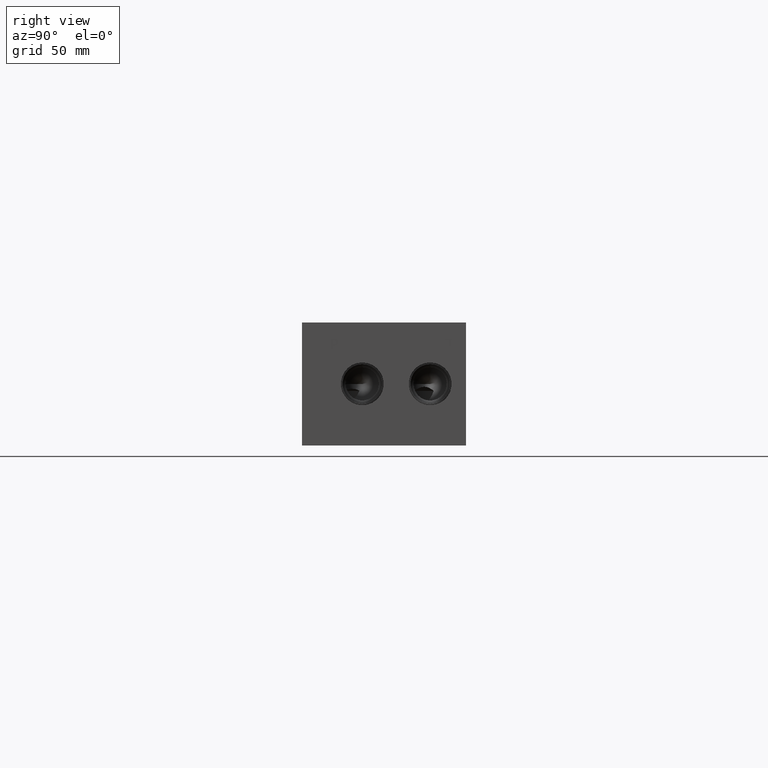
[diagram: clean part render]
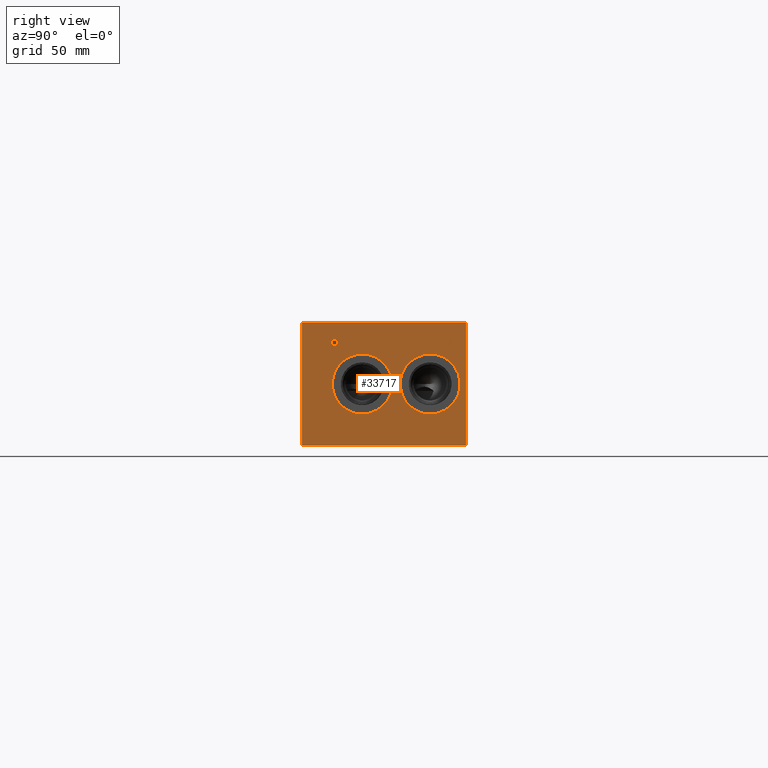
[diagram: same view with one face highlighted and labeled with its STEP entity id]
A machine part, right view. The second image highlights one B-rep face of the part: STEP entity #33717.
In plain terms, the highlighted planar face has unit normal (1, 0, 0).
Its self-contained STEP definition (entity closure, byte-faithful):
#448=CIRCLE('',#35371,18.5547);
#449=CIRCLE('',#35372,18.5547);
#450=CIRCLE('',#35373,18.5547);
#451=CIRCLE('',#35374,18.5547);
#1404=FACE_BOUND('',#5839,.T.);
#1405=FACE_BOUND('',#5840,.T.);
#1406=FACE_BOUND('',#5841,.T.);
#1407=FACE_BOUND('',#5842,.T.);
#2213=B_SPLINE_CURVE_WITH_KNOTS('',2,(#51628,#51629,#51630,#51631),
 .UNSPECIFIED.,.F.,.F.,(3,1,3),(0.,1.,2.),.UNSPECIFIED.);
#2215=B_SPLINE_CURVE_WITH_KNOTS('',2,(#51649,#51650,#51651,#51652),
 .UNSPECIFIED.,.F.,.F.,(3,1,3),(0.,1.,2.),.UNSPECIFIED.);
#2217=B_SPLINE_CURVE_WITH_KNOTS('',2,(#51698,#51699,#51700,#51701),
 .UNSPECIFIED.,.F.,.F.,(3,1,3),(0.,1.,2.),.UNSPECIFIED.);
#2219=B_SPLINE_CURVE_WITH_KNOTS('',2,(#51716,#51717,#51718,#51719),
 .UNSPECIFIED.,.F.,.F.,(3,1,3),(0.,1.,2.),.UNSPECIFIED.);
#3921=FACE_OUTER_BOUND('',#5838,.T.);
#5838=EDGE_LOOP('',(#24961,#24962,#24963,#24964));
#5839=EDGE_LOOP('',(#24965,#24966));
#5840=EDGE_LOOP('',(#24967,#24968));
#5841=EDGE_LOOP('',(#24969,#24970,#24971,#24972,#24973,#24974,#24975,#24976));
#5842=EDGE_LOOP('',(#24977,#24978,#24979,#24980,#24981,#24982,#24983,#24984,
#24985));
#7507=LINE('',#46495,#10371);
#8034=LINE('',#48664,#10898);
#8590=LINE('',#51661,#11454);
#8593=LINE('',#51667,#11457);
#8596=LINE('',#51673,#11460);
#8599=LINE('',#51679,#11463);
#8602=LINE('',#51685,#11466);
#8606=LINE('',#51727,#11470);
#8607=LINE('',#51728,#11471);
#8608=LINE('',#51739,#11472);
#8609=LINE('',#51741,#11473);
#8610=LINE('',#51743,#11474);
#8611=LINE('',#51745,#11475);
#8612=LINE('',#51747,#11476);
#8613=LINE('',#51749,#11477);
#8614=LINE('',#51751,#11478);
#8615=LINE('',#51752,#11479);
#10371=VECTOR('',#37494,10.);
#10898=VECTOR('',#38377,10.);
#11454=VECTOR('',#39385,10.);
#11457=VECTOR('',#39390,10.);
#11460=VECTOR('',#39395,10.);
#11463=VECTOR('',#39400,10.);
#11466=VECTOR('',#39405,10.);
#11470=VECTOR('',#39413,10.);
#11471=VECTOR('',#39414,10.);
#11472=VECTOR('',#39423,10.);
#11473=VECTOR('',#39424,10.);
#11474=VECTOR('',#39425,10.);
#11475=VECTOR('',#39426,10.);
#11476=VECTOR('',#39427,10.);
#11477=VECTOR('',#39428,10.);
#11478=VECTOR('',#39429,10.);
#11479=VECTOR('',#39430,10.);
#13267=VERTEX_POINT('',#46492);
#13268=VERTEX_POINT('',#46494);
#13844=VERTEX_POINT('',#48662);
#14389=VERTEX_POINT('',#51626);
#14390=VERTEX_POINT('',#51627);
#14393=VERTEX_POINT('',#51648);
#14395=VERTEX_POINT('',#51660);
#14397=VERTEX_POINT('',#51666);
#14399=VERTEX_POINT('',#51672);
#14401=VERTEX_POINT('',#51678);
#14403=VERTEX_POINT('',#51684);
#14405=VERTEX_POINT('',#51697);
#14407=VERTEX_POINT('',#51726);
#14408=VERTEX_POINT('',#51729);
#14409=VERTEX_POINT('',#51730);
#14410=VERTEX_POINT('',#51733);
#14411=VERTEX_POINT('',#51734);
#14412=VERTEX_POINT('',#51737);
#14413=VERTEX_POINT('',#51738);
#14414=VERTEX_POINT('',#51740);
#14415=VERTEX_POINT('',#51742);
#14416=VERTEX_POINT('',#51744);
#14417=VERTEX_POINT('',#51746);
#14418=VERTEX_POINT('',#51748);
#14419=VERTEX_POINT('',#51750);
#16823=EDGE_CURVE('',#13267,#13268,#7507,.T.);
#17556=EDGE_CURVE('',#13267,#13844,#8034,.T.);
#18353=EDGE_CURVE('',#14389,#14390,#2213,.T.);
#18357=EDGE_CURVE('',#14393,#14389,#2215,.T.);
#18360=EDGE_CURVE('',#14395,#14393,#8590,.T.);
#18363=EDGE_CURVE('',#14397,#14395,#8593,.T.);
#18366=EDGE_CURVE('',#14399,#14397,#8596,.T.);
#18369=EDGE_CURVE('',#14401,#14399,#8599,.T.);
#18372=EDGE_CURVE('',#14403,#14401,#8602,.T.);
#18375=EDGE_CURVE('',#14405,#14403,#2217,.T.);
#18378=EDGE_CURVE('',#14390,#14405,#2219,.T.);
#18380=EDGE_CURVE('',#13844,#14407,#8606,.T.);
#18381=EDGE_CURVE('',#13268,#14407,#8607,.T.);
#18382=EDGE_CURVE('',#14408,#14409,#448,.T.);
#18383=EDGE_CURVE('',#14409,#14408,#449,.T.);
#18384=EDGE_CURVE('',#14410,#14411,#450,.T.);
#18385=EDGE_CURVE('',#14411,#14410,#451,.T.);
#18386=EDGE_CURVE('',#14412,#14413,#8608,.T.);
#18387=EDGE_CURVE('',#14413,#14414,#8609,.T.);
#18388=EDGE_CURVE('',#14414,#14415,#8610,.T.);
#18389=EDGE_CURVE('',#14415,#14416,#8611,.T.);
#18390=EDGE_CURVE('',#14416,#14417,#8612,.T.);
#18391=EDGE_CURVE('',#14417,#14418,#8613,.T.);
#18392=EDGE_CURVE('',#14418,#14419,#8614,.T.);
#18393=EDGE_CURVE('',#14419,#14412,#8615,.T.);
#24961=ORIENTED_EDGE('',*,*,#17556,.T.);
#24962=ORIENTED_EDGE('',*,*,#18380,.T.);
#24963=ORIENTED_EDGE('',*,*,#18381,.F.);
#24964=ORIENTED_EDGE('',*,*,#16823,.F.);
#24965=ORIENTED_EDGE('',*,*,#18382,.T.);
#24966=ORIENTED_EDGE('',*,*,#18383,.T.);
#24967=ORIENTED_EDGE('',*,*,#18384,.T.);
#24968=ORIENTED_EDGE('',*,*,#18385,.T.);
#24969=ORIENTED_EDGE('',*,*,#18386,.T.);
#24970=ORIENTED_EDGE('',*,*,#18387,.T.);
#24971=ORIENTED_EDGE('',*,*,#18388,.T.);
#24972=ORIENTED_EDGE('',*,*,#18389,.T.);
#24973=ORIENTED_EDGE('',*,*,#18390,.T.);
#24974=ORIENTED_EDGE('',*,*,#18391,.T.);
#24975=ORIENTED_EDGE('',*,*,#18392,.T.);
#24976=ORIENTED_EDGE('',*,*,#18393,.T.);
#24977=ORIENTED_EDGE('',*,*,#18353,.T.);
#24978=ORIENTED_EDGE('',*,*,#18378,.T.);
#24979=ORIENTED_EDGE('',*,*,#18375,.T.);
#24980=ORIENTED_EDGE('',*,*,#18372,.T.);
#24981=ORIENTED_EDGE('',*,*,#18369,.T.);
#24982=ORIENTED_EDGE('',*,*,#18366,.T.);
#24983=ORIENTED_EDGE('',*,*,#18363,.T.);
#24984=ORIENTED_EDGE('',*,*,#18360,.T.);
#24985=ORIENTED_EDGE('',*,*,#18357,.T.);
#31358=PLANE('',#35370);
#33717=ADVANCED_FACE('',(#3921,#1404,#1405,#1406,#1407),#31358,.T.);
#35370=AXIS2_PLACEMENT_3D('',#51725,#39411,#39412);
#35371=AXIS2_PLACEMENT_3D('',#51731,#39415,#39416);
#35372=AXIS2_PLACEMENT_3D('',#51732,#39417,#39418);
#35373=AXIS2_PLACEMENT_3D('',#51735,#39419,#39420);
#35374=AXIS2_PLACEMENT_3D('',#51736,#39421,#39422);
#37494=DIRECTION('',(0.,0.,1.));
#38377=DIRECTION('',(0.,1.,0.));
#39385=DIRECTION('',(0.,1.,0.));
#39390=DIRECTION('',(0.,0.,1.));
#39395=DIRECTION('',(0.,-1.,0.));
#39400=DIRECTION('',(0.,0.,-1.));
#39405=DIRECTION('',(0.,-1.,0.));
#39411=DIRECTION('center_axis',(1.,0.,0.));
#39412=DIRECTION('ref_axis',(0.,1.,0.));
#39413=DIRECTION('',(0.,0.,1.));
#39414=DIRECTION('',(0.,1.,0.));
#39415=DIRECTION('center_axis',(-1.,0.,0.));
#39416=DIRECTION('ref_axis',(0.,0.,-1.));
#39417=DIRECTION('center_axis',(-1.,0.,0.));
#39418=DIRECTION('ref_axis',(0.,0.,-1.));
#39419=DIRECTION('center_axis',(-1.,0.,0.));
#39420=DIRECTION('ref_axis',(0.,0.,-1.));
#39421=DIRECTION('center_axis',(-1.,0.,0.));
#39422=DIRECTION('ref_axis',(0.,0.,-1.));
#39423=DIRECTION('',(0.,-1.,0.));
#39424=DIRECTION('',(0.,0.,1.));
#39425=DIRECTION('',(0.,-1.,0.));
#39426=DIRECTION('',(0.,0.,1.));
#39427=DIRECTION('',(0.,1.,0.));
#39428=DIRECTION('',(0.,0.,-1.));
#39429=DIRECTION('',(0.,-1.,0.));
#39430=DIRECTION('',(0.,0.,-1.));
#46492=CARTESIAN_POINT('',(434.975,0.,0.));
#46494=CARTESIAN_POINT('',(434.975,0.,76.2));
#46495=CARTESIAN_POINT('',(434.975,0.,0.));
#48662=CARTESIAN_POINT('',(434.975,101.6,0.));
#48664=CARTESIAN_POINT('',(434.975,0.,0.));
#51626=CARTESIAN_POINT('',(434.975,21.3630672023594,65.4850181439707));
#51627=CARTESIAN_POINT('',(434.975,22.119509654532,63.9669873726039));
#51628=CARTESIAN_POINT('Ctrl Pts',(434.975,21.3630672023594,65.4850181439707));
#51629=CARTESIAN_POINT('Ctrl Pts',(434.975,21.7181320268486,65.2431623939564));
#51630=CARTESIAN_POINT('Ctrl Pts',(434.975,22.119509654532,64.4970116758269));
#51631=CARTESIAN_POINT('Ctrl Pts',(434.975,22.119509654532,63.9669873726039));
#51648=CARTESIAN_POINT('',(434.975,19.7009521543883,65.8812499046326));
#51649=CARTESIAN_POINT('Ctrl Pts',(434.975,19.7009521543883,65.8812499046326));
#51650=CARTESIAN_POINT('Ctrl Pts',(434.975,20.2669975267624,65.8812499046326));
#51651=CARTESIAN_POINT('Ctrl Pts',(434.975,21.059461048086,65.6959986918556));
#51652=CARTESIAN_POINT('Ctrl Pts',(434.975,21.3630672023594,65.4850181439707));
#51660=CARTESIAN_POINT('',(434.975,18.1057333776978,65.8812499046326));
#51661=CARTESIAN_POINT('',(434.975,9.05286668884889,65.8812499046326));
#51666=CARTESIAN_POINT('',(434.975,18.1057333776978,59.53125));
#51667=CARTESIAN_POINT('',(434.975,18.1057333776978,29.765625));
#51672=CARTESIAN_POINT('',(434.975,18.9496555692373,59.53125));
#51673=CARTESIAN_POINT('',(434.975,9.47482778461864,59.53125));
#51678=CARTESIAN_POINT('',(434.975,18.9496555692373,61.8983488299279));
#51679=CARTESIAN_POINT('',(434.975,18.9496555692373,30.9491744149639));
#51684=CARTESIAN_POINT('',(434.975,19.6649310852372,61.8983488299279));
#51685=CARTESIAN_POINT('',(434.975,9.83246554261861,61.8983488299279));
#51697=CARTESIAN_POINT('',(434.975,21.5637560162011,62.5570198086904));
#51698=CARTESIAN_POINT('Ctrl Pts',(434.975,21.5637560162011,62.5570198086904));
#51699=CARTESIAN_POINT('Ctrl Pts',(434.975,21.2344205268198,62.2328301863307));
#51700=CARTESIAN_POINT('Ctrl Pts',(434.975,20.3441855320861,61.8983488299279));
#51701=CARTESIAN_POINT('Ctrl Pts',(434.975,19.6649310852372,61.8983488299279));
#51716=CARTESIAN_POINT('Ctrl Pts',(434.975,22.119509654532,63.9669873726039));
#51717=CARTESIAN_POINT('Ctrl Pts',(434.975,22.119509654532,63.5553180108774));
#51718=CARTESIAN_POINT('Ctrl Pts',(434.975,21.8261952343018,62.8143131597695));
#51719=CARTESIAN_POINT('Ctrl Pts',(434.975,21.5637560162011,62.5570198086904));
#51725=CARTESIAN_POINT('Origin',(434.975,0.,0.));
#51726=CARTESIAN_POINT('',(434.975,101.6,76.2));
#51727=CARTESIAN_POINT('',(434.975,101.6,0.));
#51728=CARTESIAN_POINT('',(434.975,0.,76.2));
#51729=CARTESIAN_POINT('',(434.975,79.375,19.5453));
#51730=CARTESIAN_POINT('',(434.975,79.375,56.6547));
#51731=CARTESIAN_POINT('Origin',(434.975,79.375,38.1));
#51732=CARTESIAN_POINT('Origin',(434.975,79.375,38.1));
#51733=CARTESIAN_POINT('',(434.975,37.3126,19.5453));
#51734=CARTESIAN_POINT('',(434.975,37.3126,56.6547));
#51735=CARTESIAN_POINT('Origin',(434.975,37.3126,38.1));
#51736=CARTESIAN_POINT('Origin',(434.975,37.3126,38.1));
#51737=CARTESIAN_POINT('',(434.975,91.869165271453,59.53125));
#51738=CARTESIAN_POINT('',(434.975,91.0252430799135,59.53125));
#51739=CARTESIAN_POINT('',(434.975,45.9345826357265,59.53125));
#51740=CARTESIAN_POINT('',(434.975,91.0252430799135,65.1299533194816));
#51741=CARTESIAN_POINT('',(434.975,91.0252430799135,29.765625));
#51742=CARTESIAN_POINT('',(434.975,88.8948541329784,65.1299533194816));
#51743=CARTESIAN_POINT('',(434.975,45.5126215399568,65.1299533194816));
#51744=CARTESIAN_POINT('',(434.975,88.8948541329784,65.8812499046326));
#51745=CARTESIAN_POINT('',(434.975,88.8948541329784,32.5649766597408));
#51746=CARTESIAN_POINT('',(434.975,93.9995542183881,65.8812499046326));
#51747=CARTESIAN_POINT('',(434.975,44.4474270664892,65.8812499046326));
#51748=CARTESIAN_POINT('',(434.975,93.9995542183881,65.1299533194816));
#51749=CARTESIAN_POINT('',(434.975,93.9995542183881,32.9406249523163));
#51750=CARTESIAN_POINT('',(434.975,91.869165271453,65.1299533194816));
#51751=CARTESIAN_POINT('',(434.975,46.999777109194,65.1299533194816));
#51752=CARTESIAN_POINT('',(434.975,91.869165271453,32.5649766597408));